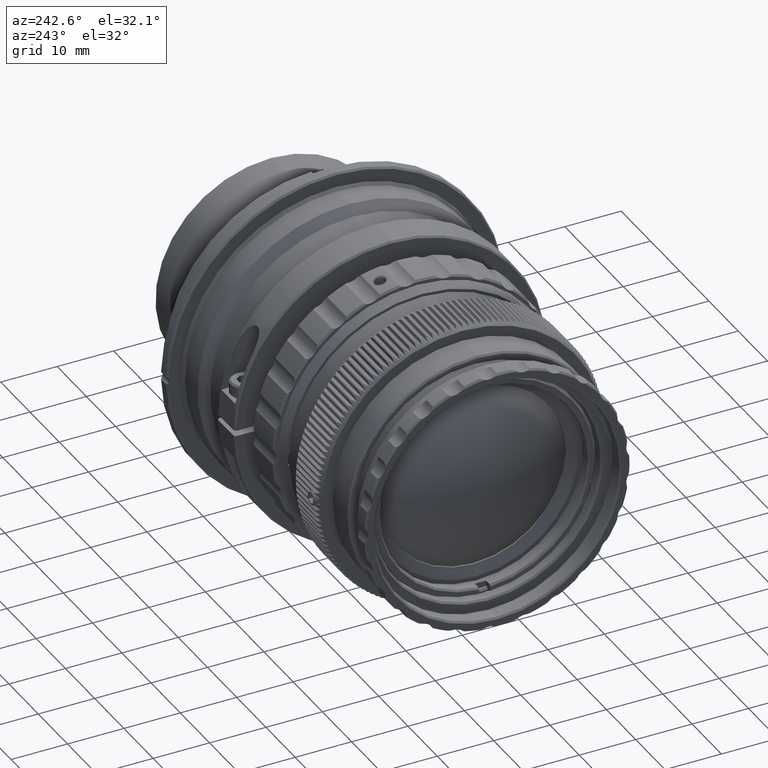
[diagram: clean part render]
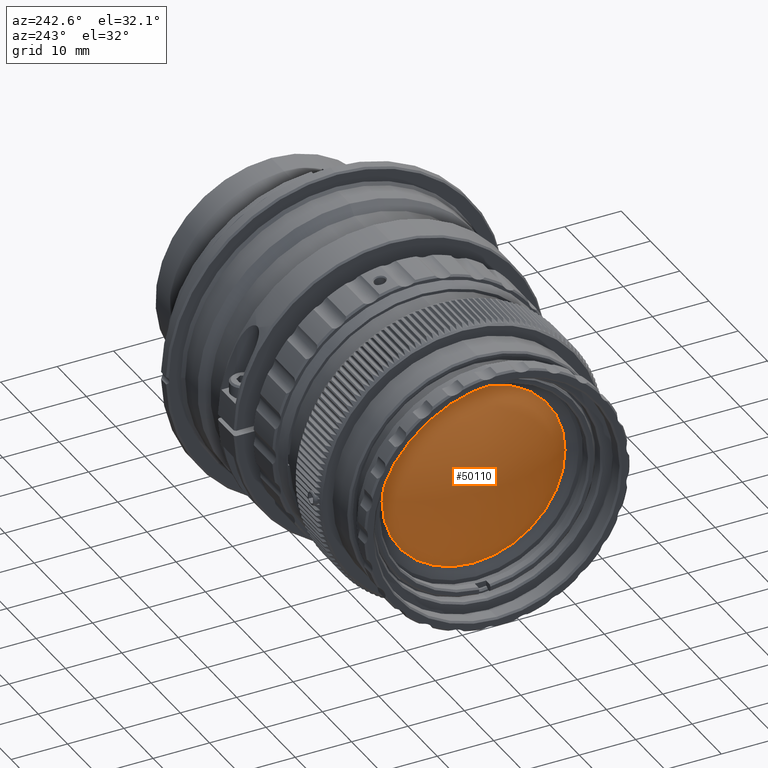
[diagram: same view with one face highlighted and labeled with its STEP entity id]
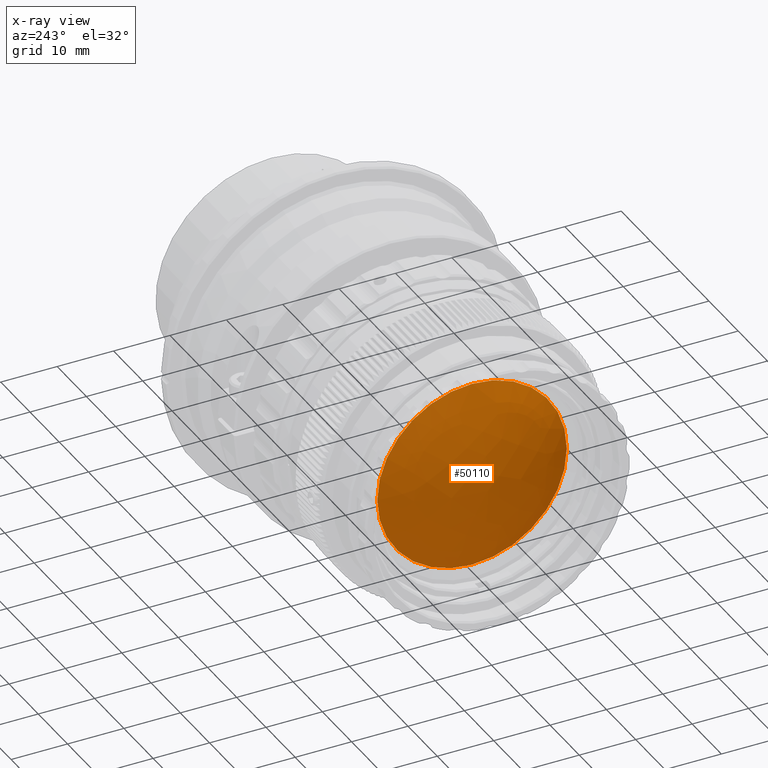
[diagram: x-ray of the same camera — body ghosted, the highlighted face saturated]
A machine part, auxiliary view. The second image highlights one B-rep face of the part: STEP entity #50110.
The next image is the same camera in x-ray: the body ghosted, the highlighted face saturated — about 0% of this face is hidden behind the body in this view.
In plain terms, the highlighted face is a freeform B-spline surface patch.
Its self-contained STEP definition (entity closure, byte-faithful):
#1065 = CARTESIAN_POINT ( 'NONE',  ( -63.36797159681891100, -6.620438599466115000, 6.998221560886744200 ) ) ;
#3197 = CIRCLE ( 'NONE', #44733, 16.80000000000000100 ) ;
#3229 = FACE_OUTER_BOUND ( 'NONE', #50784, .T. ) ;
#5502 = CARTESIAN_POINT ( 'NONE',  ( -54.87852389682061700, -6.620438599466116800, -18.35505894002763900 ) ) ;
#6671 = CARTESIAN_POINT ( 'NONE',  ( -53.30633380682680700, 1.781318394342134800E-013, -16.80000000000000100 ) ) ;
#8676 = DIRECTION ( 'NONE',  ( -1.000000000000000000, -0.0000000000000000000, -0.0000000000000000000 ) ) ;
#18088 =( BOUNDED_SURFACE ( )  B_SPLINE_SURFACE ( 3, 3, ( 
 ( #38636, #19410, #51765, #42681 ),
 ( #19614, #52341, #52147, #56784 ),
 ( #5502, #24683, #1065, #51953 ),
 ( #56379, #28734, #47720, #33743 ) ),
 .UNSPECIFIED., .F., .F., .F. ) 
 B_SPLINE_SURFACE_WITH_KNOTS ( ( 4, 4 ),
 ( 4, 4 ),
 ( 0.0000000000000000000, 1.000000000000000000 ),
 ( 0.0000000000000000000, 1.000000000000000000 ),
 .UNSPECIFIED. ) 
 GEOMETRIC_REPRESENTATION_ITEM ( )  RATIONAL_B_SPLINE_SURFACE ( (
 ( 1.000000000000000000, 0.8667301269570817400, 0.8667301269570817400, 1.000000000000000000),
 ( 0.8656476331985270000, 0.7502828830222566500, 0.7502828830222566500, 0.8656476331985270000),
 ( 0.8656476331985270000, 0.7502828830222566500, 0.7502828830222566500, 0.8656476331985270000),
 ( 1.000000000000000000, 0.8667301269570817400, 0.8667301269570817400, 1.000000000000000000) ) ) 
 REPRESENTATION_ITEM ( '' )  SURFACE ( )  );
#19410 = CARTESIAN_POINT ( 'NONE',  ( -54.86877491857204300, 17.03185515266493900, -5.263715077854394400 ) ) ;
#19614 = CARTESIAN_POINT ( 'NONE',  ( -54.89511501590642000, 6.523943668880155800, -18.36753553398058600 ) ) ;
#24683 = CARTESIAN_POINT ( 'NONE',  ( -63.34767709821487400, -6.620438599466115000, -7.092952482927602300 ) ) ;
#28734 = CARTESIAN_POINT ( 'NONE',  ( -54.81073867958059500, -17.10335504868697500, -5.251194346164885100 ) ) ;
#28998 = EDGE_CURVE ( 'NONE', #32772, #52753, #3197, .T. ) ;
#29227 = CARTESIAN_POINT ( 'NONE',  ( -53.30633380682680700, 1.760744328116459200E-013, 0.0000000000000000000 ) ) ;
#32772 = VERTEX_POINT ( 'NONE', #41834 ) ;
#33711 = AXIS2_PLACEMENT_3D ( 'NONE', #29227, #42792, #47640 ) ;
#33743 = CARTESIAN_POINT ( 'NONE',  ( -48.57975570049903500, -17.10335504868697500, 13.53687182445587700 ) ) ;
#34194 = CIRCLE ( 'NONE', #33711, 16.80000000000000100 ) ;
#36751 = EDGE_CURVE ( 'NONE', #52753, #32772, #34194, .T. ) ;
#38636 = CARTESIAN_POINT ( 'NONE',  ( -48.58377448890080100, 17.03185515266493500, -13.62137991620262200 ) ) ;
#41834 = CARTESIAN_POINT ( 'NONE',  ( -53.30633380682680700, 1.760744328116459200E-013, 16.80000000000000100 ) ) ;
#42681 = CARTESIAN_POINT ( 'NONE',  ( -48.62293504010720800, 17.03185515266493500, 13.56914858453295900 ) ) ;
#42792 = DIRECTION ( 'NONE',  ( -1.000000000000000000, -0.0000000000000000000, -0.0000000000000000000 ) ) ;
#44733 = AXIS2_PLACEMENT_3D ( 'NONE', #54741, #8676, #45287 ) ;
#45287 = DIRECTION ( 'NONE',  ( 0.0000000000000000000, 0.0000000000000000000, 1.000000000000000000 ) ) ;
#47640 = DIRECTION ( 'NONE',  ( 0.0000000000000000000, 0.0000000000000000000, 1.000000000000000000 ) ) ;
#47720 = CARTESIAN_POINT ( 'NONE',  ( -54.82576350268273300, -17.10335504868697500, 5.181061283321825300 ) ) ;
#50110 = ADVANCED_FACE ( 'NONE', ( #3229 ), #18088, .T. ) ;
#50784 = EDGE_LOOP ( 'NONE', ( #54794, #52927 ) ) ;
#51765 = CARTESIAN_POINT ( 'NONE',  ( -54.88383556624403100, 17.03185515266493900, 5.193414792622568200 ) ) ;
#51953 = CARTESIAN_POINT ( 'NONE',  ( -54.93129345687545100, -6.620438599466116800, 18.28467626388098900 ) ) ;
#52147 = CARTESIAN_POINT ( 'NONE',  ( -63.39033329894579100, 6.523943668880155800, 7.002978503868683400 ) ) ;
#52341 = CARTESIAN_POINT ( 'NONE',  ( -63.37002500544089400, 6.523943668880155800, -7.097773817925557600 ) ) ;
#52753 = VERTEX_POINT ( 'NONE', #6671 ) ;
#52927 = ORIENTED_EDGE ( 'NONE', *, *, #36751, .T. ) ;
#54741 = CARTESIAN_POINT ( 'NONE',  ( -53.30633380682680700, 1.760744328116459200E-013, 0.0000000000000000000 ) ) ;
#54794 = ORIENTED_EDGE ( 'NONE', *, *, #28998, .T. ) ;
#56379 = CARTESIAN_POINT ( 'NONE',  ( -48.54068829999459900, -17.10335504868697500, -13.58897891412536100 ) ) ;
#56784 = CARTESIAN_POINT ( 'NONE',  ( -54.94792044532978500, 6.523943668880155800, 18.29710501619667800 ) ) ;